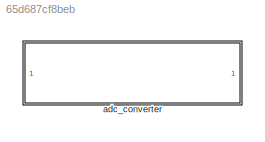
MODEL slx_65d687cf8beb
KIND library
CONFIG AbsTol = auto
CONFIG EnableMultiTasking = off
CONFIG FixedStep = auto
CONFIG MaxStep = auto
CONFIG MinStep = auto
CONFIG RelTol = 1e-3
CONFIG SampleTimeConstraint = Unconstrained
CONFIG SolverName = VariableStepAuto
CONFIG StartTime = 0.0
CONFIG StopTime = 10.0
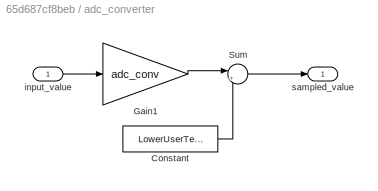
BLOCK [SubSystem] adc_converter
BLOCK [Constant] adc_converter/Constant
  OutDataTypeStr = uint16
  Value = LowerUserTemp
BLOCK [Gain] adc_converter/Gain1
  Gain = adc_conv
  OutDataTypeStr = uint16
BLOCK [Sum] adc_converter/Sum
  Inputs = |++
BLOCK [Inport] adc_converter/input_value
BLOCK [Outport] adc_converter/sampled_value
LINE adc_converter/Constant:1 -> adc_converter/Sum:2
LINE adc_converter/Gain1:1 -> adc_converter/Sum:1
LINE adc_converter/Sum:1 -> adc_converter/sampled_value:1
LINE adc_converter/input_value:1 -> adc_converter/Gain1:1
